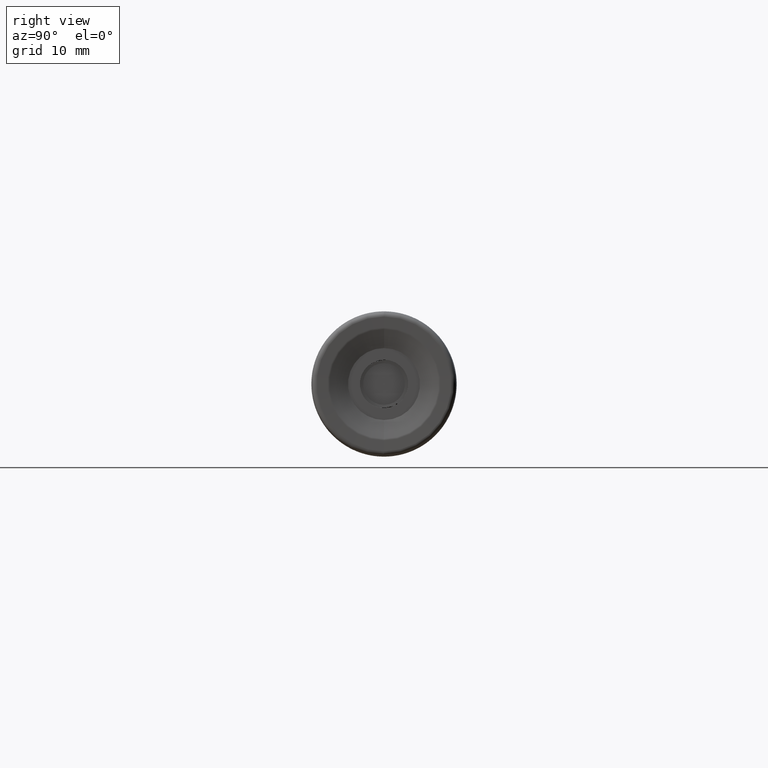
[diagram: clean part render]
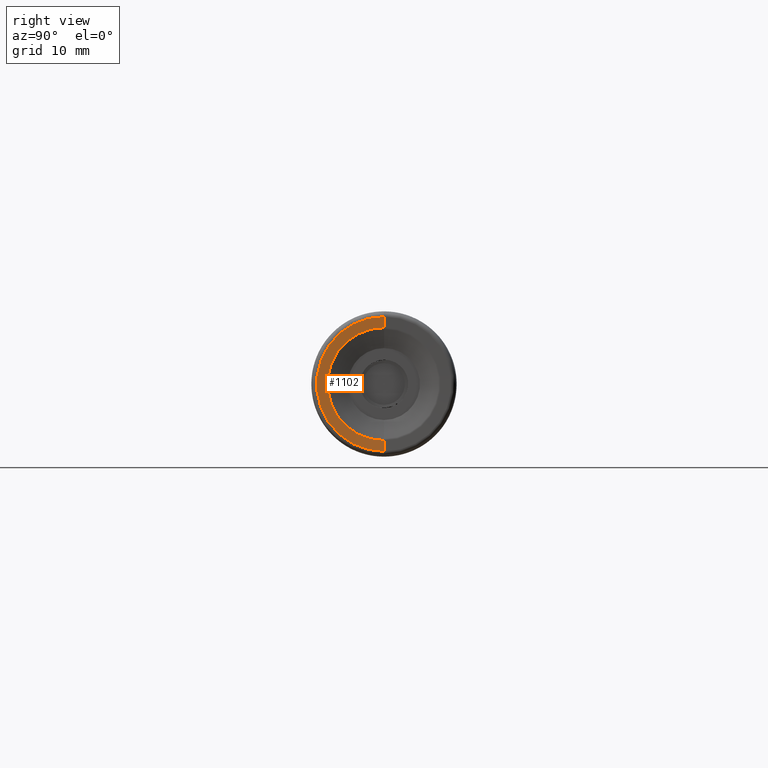
[diagram: same view with one face highlighted and labeled with its STEP entity id]
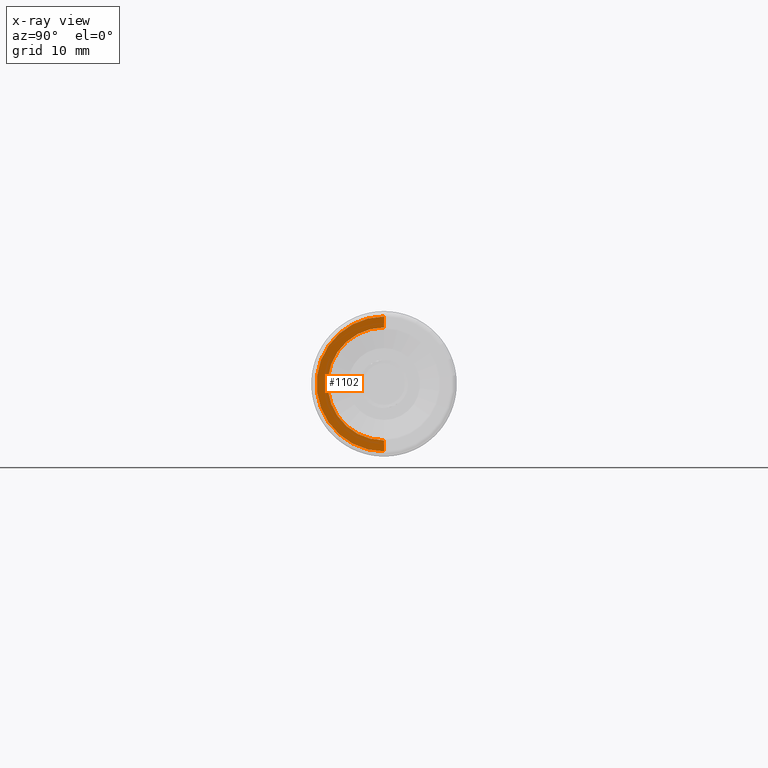
[diagram: x-ray of the same camera — body ghosted, the highlighted face saturated]
A machine part, right view. The second image highlights one B-rep face of the part: STEP entity #1102.
The next image is the same camera in x-ray: the body ghosted, the highlighted face saturated — about 0% of this face is hidden behind the body in this view.
In plain terms, the highlighted conical surface has half-angle 88.225 deg.
Its self-contained STEP definition (entity closure, byte-faithful):
#62 = VECTOR ( 'NONE', #2892, 1000.000000000000000 ) ;
#70 = VECTOR ( 'NONE', #2895, 1000.000000000000000 ) ;
#71 = AXIS2_PLACEMENT_3D ( 'NONE', #2899, #2900, #2901 ) ;
#73 = CIRCLE ( 'NONE', #71, 4.661327496907251300 ) ;
#1102 = ADVANCED_FACE ( 'NONE', ( #2159 ), #1404, .F. ) ;
#1218 = EDGE_CURVE ( 'NONE', #2335, #2425, #1650, .T. ) ;
#1219 = EDGE_CURVE ( 'NONE', #2317, #2425, #2888, .T. ) ;
#1220 = EDGE_CURVE ( 'NONE', #2426, #2335, #2893, .T. ) ;
#1222 = EDGE_CURVE ( 'NONE', #2426, #2317, #73, .T. ) ;
#1253 = ORIENTED_EDGE ( 'NONE', *, *, #1219, .F. ) ;
#1260 = ORIENTED_EDGE ( 'NONE', *, *, #1218, .T. ) ;
#1261 = ORIENTED_EDGE ( 'NONE', *, *, #1222, .F. ) ;
#1282 = ORIENTED_EDGE ( 'NONE', *, *, #1220, .T. ) ;
#1367 = AXIS2_PLACEMENT_3D ( 'NONE', #2163, #2164, #2161 ) ;
#1404 = CONICAL_SURFACE ( 'NONE', #1367, 5.567777955433022000, 1.539819173504007000 ) ;
#1566 = EDGE_LOOP ( 'NONE', ( #1261, #1282, #1260, #1253 ) ) ;
#1649 = AXIS2_PLACEMENT_3D ( 'NONE', #2889, #2890, #2891 ) ;
#1650 = CIRCLE ( 'NONE', #1649, 5.567777955433022000 ) ;
#2159 = FACE_OUTER_BOUND ( 'NONE', #1566, .T. ) ;
#2161 = DIRECTION ( 'NONE',  ( 0.0000000000000000000, 0.0000000000000000000, -1.000000000000000000 ) ) ;
#2163 = CARTESIAN_POINT ( 'NONE',  ( 0.4998094004053949500, 0.0000000000000000000, 0.0000000000000000000 ) ) ;
#2164 = DIRECTION ( 'NONE',  ( 1.000000000000000000, -0.0000000000000000000, -0.0000000000000000000 ) ) ;
#2317 = VERTEX_POINT ( 'NONE', #2954 ) ;
#2335 = VERTEX_POINT ( 'NONE', #2960 ) ;
#2425 = VERTEX_POINT ( 'NONE', #3058 ) ;
#2426 = VERTEX_POINT ( 'NONE', #3059 ) ;
#2884 = CARTESIAN_POINT ( 'NONE',  ( 0.4998094004053949500, 0.0000000000000000000, -5.567777955433022000 ) ) ;
#2888 = LINE ( 'NONE', #2884, #62 ) ;
#2889 = CARTESIAN_POINT ( 'NONE',  ( 0.4998094004053949500, 0.0000000000000000000, 0.0000000000000000000 ) ) ;
#2890 = DIRECTION ( 'NONE',  ( 1.000000000000000000, -0.0000000000000000000, -0.0000000000000000000 ) ) ;
#2891 = DIRECTION ( 'NONE',  ( 0.0000000000000000000, 0.0000000000000000000, -1.000000000000000000 ) ) ;
#2892 = DIRECTION ( 'NONE',  ( 0.03097219933167109200, 0.0000000000000000000, -0.9995202463524984800 ) ) ;
#2893 = LINE ( 'NONE', #2894, #70 ) ;
#2894 = CARTESIAN_POINT ( 'NONE',  ( 0.4998094004053949500, 6.818561451484244800E-016, 5.567777955433022000 ) ) ;
#2895 = DIRECTION ( 'NONE',  ( 0.03097219933167109200, 1.224059270378561100E-016, 0.9995202463524984800 ) ) ;
#2899 = CARTESIAN_POINT ( 'NONE',  ( 0.4717211606841919000, 0.0000000000000000000, 0.0000000000000000000 ) ) ;
#2900 = DIRECTION ( 'NONE',  ( 1.000000000000000000, -0.0000000000000000000, -0.0000000000000000000 ) ) ;
#2901 = DIRECTION ( 'NONE',  ( 0.0000000000000000000, 0.0000000000000000000, -1.000000000000000000 ) ) ;
#2954 = CARTESIAN_POINT ( 'NONE',  ( 0.4717211606841919000, 0.0000000000000000000, -4.661327496907254900 ) ) ;
#2960 = CARTESIAN_POINT ( 'NONE',  ( 0.4998094004053949500, 7.069299473977309300E-016, 5.567777955433022000 ) ) ;
#3058 = CARTESIAN_POINT ( 'NONE',  ( 0.4998094004053949500, 0.0000000000000000000, -5.567777955433022000 ) ) ;
#3059 = CARTESIAN_POINT ( 'NONE',  ( 0.4717211606841919000, 5.708479798865012200E-016, 4.661327496907254900 ) ) ;